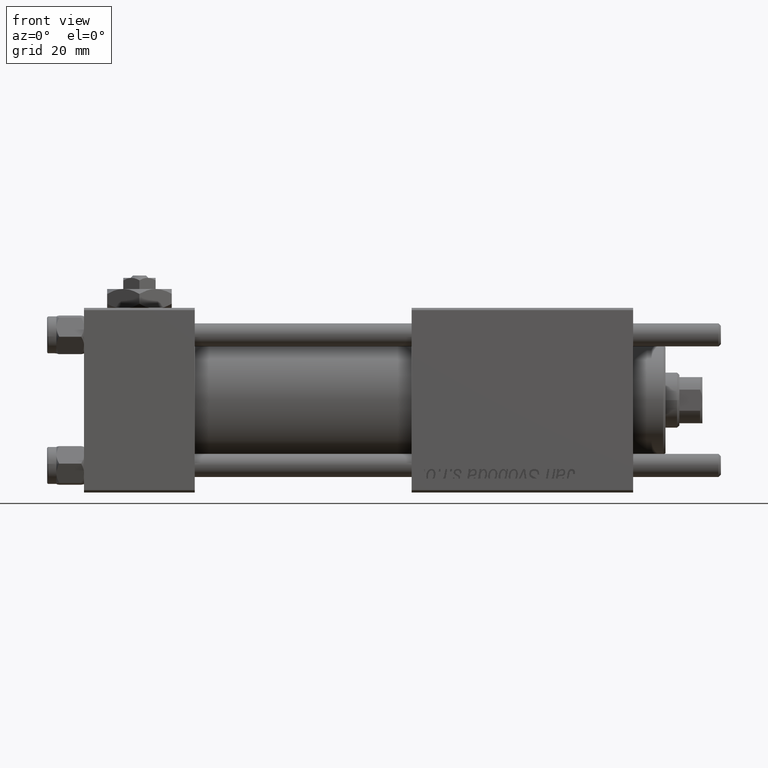
[diagram: clean part render]
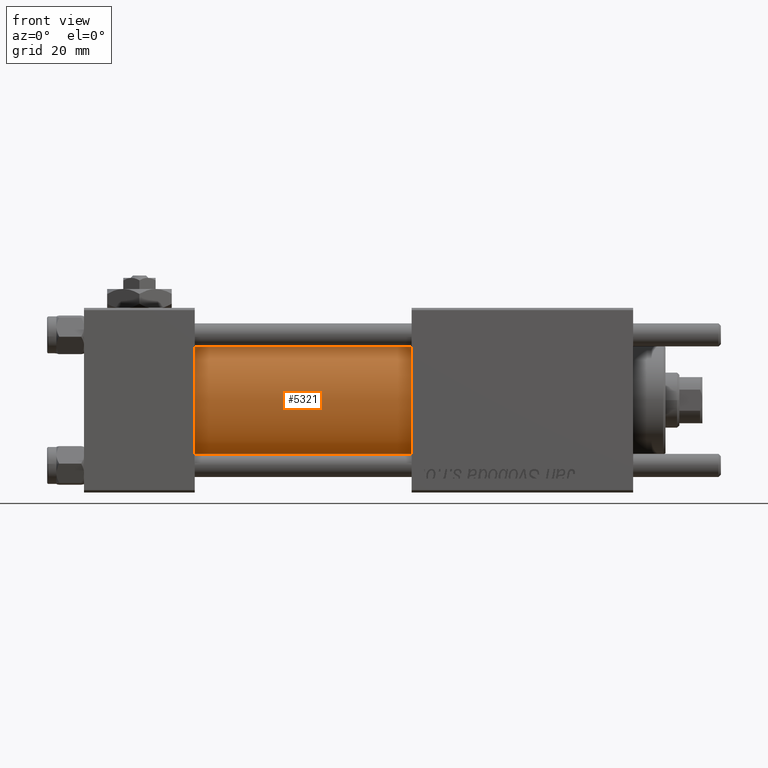
[diagram: same view with one face highlighted and labeled with its STEP entity id]
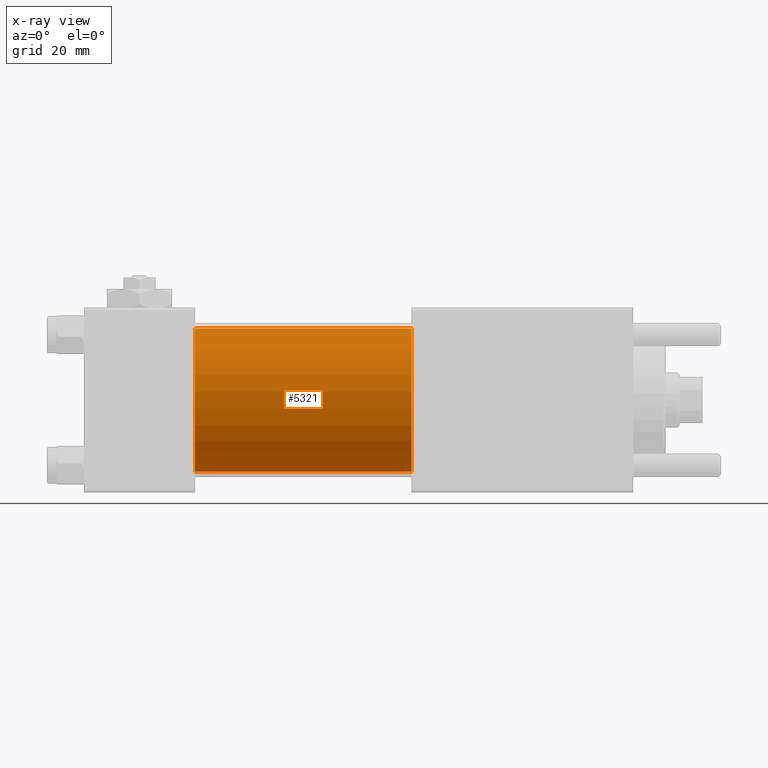
[diagram: x-ray of the same camera — body ghosted, the highlighted face saturated]
A machine part, front view. The second image highlights one B-rep face of the part: STEP entity #5321.
The next image is the same camera in x-ray: the body ghosted, the highlighted face saturated — about 0% of this face is hidden behind the body in this view.
In plain terms, the highlighted cylindrical surface (partial cylindrical patch) has radius 15.5 mm, axis along (-1, -0, -0).
Its self-contained STEP definition (entity closure, byte-faithful):
#512 = VECTOR ( 'NONE', #34199, 1000.000000000000000 ) ;
#2573 = ORIENTED_EDGE ( 'NONE', *, *, #28705, .T. ) ;
#5321 = ADVANCED_FACE ( 'NONE', ( #34193 ), #33319, .T. ) ;
#6415 = CARTESIAN_POINT ( 'NONE',  ( 24.00000000000000000, -2.602085213965210642E-15, 0.000000000000000000 ) ) ;
#7945 = CARTESIAN_POINT ( 'NONE',  ( 24.00000000000000000, -7.038826752868131828E-16, -15.50000000000000000 ) ) ;
#9879 = DIRECTION ( 'NONE',  ( 1.000000000000000000, 0.000000000000000000, 0.000000000000000000 ) ) ;
#11481 = AXIS2_PLACEMENT_3D ( 'NONE', #15276, #12000, #51648 ) ;
#12000 = DIRECTION ( 'NONE',  ( -1.000000000000000000, -0.000000000000000000, -0.000000000000000000 ) ) ;
#12035 = DIRECTION ( 'NONE',  ( -1.000000000000000000, -0.000000000000000000, -0.000000000000000000 ) ) ;
#12314 = CARTESIAN_POINT ( 'NONE',  ( 71.00000000000001421, -7.038826752868131828E-16, -15.50000000000000000 ) ) ;
#12819 = VERTEX_POINT ( 'NONE', #16601 ) ;
#14308 = DIRECTION ( 'NONE',  ( 0.000000000000000000, 0.000000000000000000, -1.000000000000000000 ) ) ;
#15276 = CARTESIAN_POINT ( 'NONE',  ( 71.00000000000001421, -2.602085213965210642E-15, 0.000000000000000000 ) ) ;
#15286 = DIRECTION ( 'NONE',  ( 1.000000000000000000, 0.000000000000000000, 0.000000000000000000 ) ) ;
#16601 = CARTESIAN_POINT ( 'NONE',  ( 24.00000000000000000, -2.602085213965210642E-15, 15.50000000000000000 ) ) ;
#17213 = EDGE_CURVE ( 'NONE', #48399, #26432, #50054, .T. ) ;
#21023 = CIRCLE ( 'NONE', #50308, 15.50000000000000000 ) ;
#24545 = AXIS2_PLACEMENT_3D ( 'NONE', #28201, #9879, #14308 ) ;
#25460 = CARTESIAN_POINT ( 'NONE',  ( 71.00000000000001421, -2.602085213965210642E-15, 15.50000000000000000 ) ) ;
#25542 = EDGE_LOOP ( 'NONE', ( #45435, #30867, #45875, #2573 ) ) ;
#26432 = VERTEX_POINT ( 'NONE', #12314 ) ;
#28201 = CARTESIAN_POINT ( 'NONE',  ( 71.00000000000001421, -2.602085213965210642E-15, 0.000000000000000000 ) ) ;
#28705 = EDGE_CURVE ( 'NONE', #12819, #29751, #21023, .T. ) ;
#29751 = VERTEX_POINT ( 'NONE', #7945 ) ;
#29767 = LINE ( 'NONE', #33895, #512 ) ;
#30867 = ORIENTED_EDGE ( 'NONE', *, *, #17213, .F. ) ;
#33319 = CYLINDRICAL_SURFACE ( 'NONE', #11481, 15.50000000000000000 ) ;
#33895 = CARTESIAN_POINT ( 'NONE',  ( 71.00000000000001421, -2.602085213965210642E-15, 15.50000000000000000 ) ) ;
#34193 = FACE_OUTER_BOUND ( 'NONE', #25542, .T. ) ;
#34199 = DIRECTION ( 'NONE',  ( -1.000000000000000000, -0.000000000000000000, -0.000000000000000000 ) ) ;
#34821 = VECTOR ( 'NONE', #12035, 1000.000000000000000 ) ;
#35879 = EDGE_CURVE ( 'NONE', #48399, #12819, #29767, .T. ) ;
#43536 = EDGE_CURVE ( 'NONE', #26432, #29751, #51969, .T. ) ;
#45435 = ORIENTED_EDGE ( 'NONE', *, *, #43536, .F. ) ;
#45875 = ORIENTED_EDGE ( 'NONE', *, *, #35879, .T. ) ;
#46959 = CARTESIAN_POINT ( 'NONE',  ( 71.00000000000001421, -7.038826752868131828E-16, -15.50000000000000000 ) ) ;
#48399 = VERTEX_POINT ( 'NONE', #25460 ) ;
#50054 = CIRCLE ( 'NONE', #24545, 15.50000000000000000 ) ;
#50308 = AXIS2_PLACEMENT_3D ( 'NONE', #6415, #15286, #52244 ) ;
#51648 = DIRECTION ( 'NONE',  ( 0.000000000000000000, 0.000000000000000000, 1.000000000000000000 ) ) ;
#51969 = LINE ( 'NONE', #46959, #34821 ) ;
#52244 = DIRECTION ( 'NONE',  ( 0.000000000000000000, 0.000000000000000000, 1.000000000000000000 ) ) ;